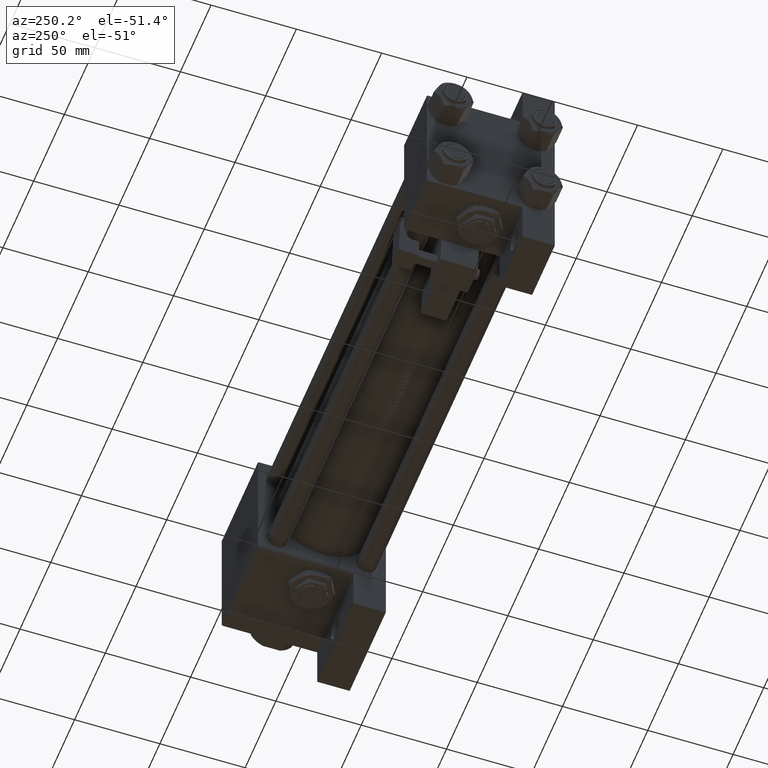
[diagram: clean part render]
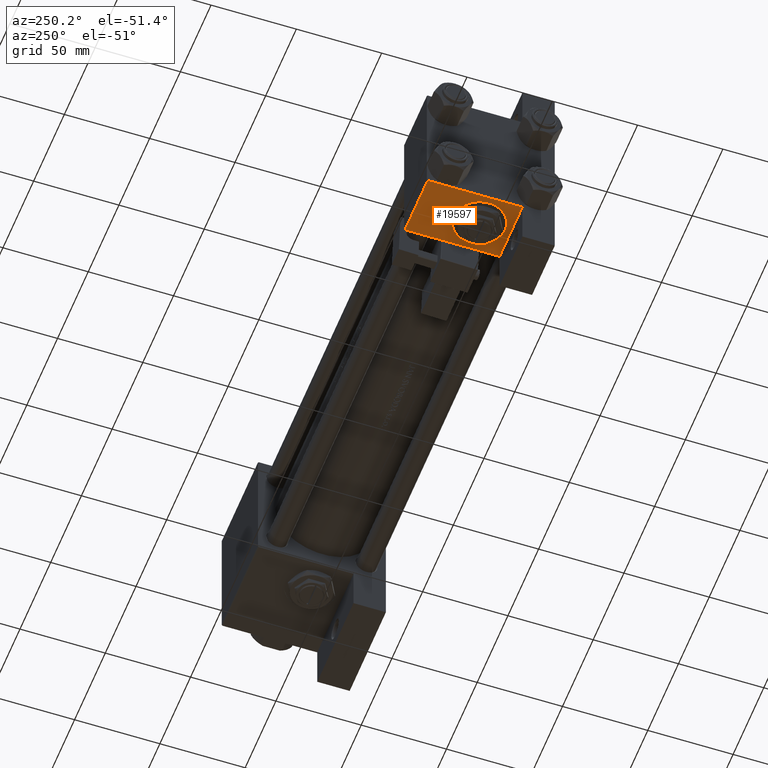
[diagram: same view with one face highlighted and labeled with its STEP entity id]
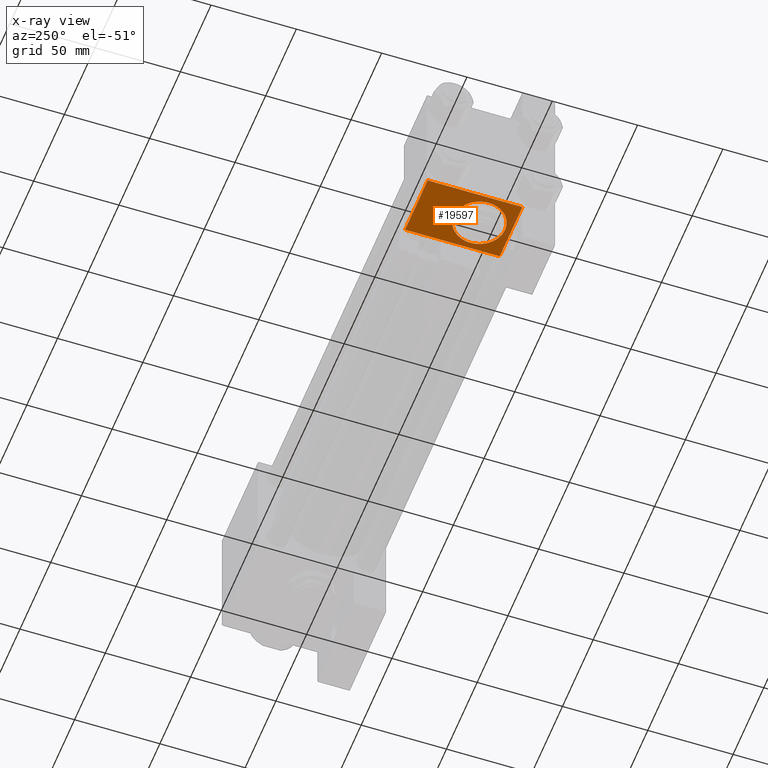
[diagram: x-ray of the same camera — body ghosted, the highlighted face saturated]
A machine part, auxiliary view. The second image highlights one B-rep face of the part: STEP entity #19597.
The next image is the same camera in x-ray: the body ghosted, the highlighted face saturated — about 0% of this face is hidden behind the body in this view.
In plain terms, the highlighted planar face has unit normal (0, 0, -1).
Its self-contained STEP definition (entity closure, byte-faithful):
#2586 = ORIENTED_EDGE ( 'NONE', *, *, #9215, .T. ) ;
#2801 = CARTESIAN_POINT ( 'NONE',  ( 37.00000000000000000, 37.49999999999999289, 37.50000000000000000 ) ) ;
#4147 = CARTESIAN_POINT ( 'NONE',  ( 37.00000000000000711, 37.50000000000000711, -18.50000000000000355 ) ) ;
#4741 = ORIENTED_EDGE ( 'NONE', *, *, #39471, .F. ) ;
#5052 = DIRECTION ( 'NONE',  ( 0.000000000000000000, 0.000000000000000000, -1.000000000000000000 ) ) ;
#6534 = DIRECTION ( 'NONE',  ( 1.000000000000000000, 0.000000000000000000, 0.000000000000000000 ) ) ;
#6915 = VERTEX_POINT ( 'NONE', #17464 ) ;
#7925 = DIRECTION ( 'NONE',  ( 1.000000000000000000, -3.750753461571474945E-16, 0.000000000000000000 ) ) ;
#9215 = EDGE_CURVE ( 'NONE', #10940, #10526, #38963, .T. ) ;
#9673 = EDGE_CURVE ( 'NONE', #10940, #50650, #24899, .T. ) ;
#10421 = CARTESIAN_POINT ( 'NONE',  ( 18.50000000000000000, 37.49999999999999289, 15.00000000000000178 ) ) ;
#10526 = VERTEX_POINT ( 'NONE', #43885 ) ;
#10538 = AXIS2_PLACEMENT_3D ( 'NONE', #38357, #26548, #46997 ) ;
#10853 = AXIS2_PLACEMENT_3D ( 'NONE', #36874, #42130, #30822 ) ;
#10864 = FACE_OUTER_BOUND ( 'NONE', #20560, .T. ) ;
#10940 = VERTEX_POINT ( 'NONE', #36894 ) ;
#11569 = CARTESIAN_POINT ( 'NONE',  ( 8.470280871287256020E-15, 37.50000000000002842, -18.49999999999999645 ) ) ;
#11614 = EDGE_CURVE ( 'NONE', #10526, #39960, #41804, .T. ) ;
#12752 = CARTESIAN_POINT ( 'NONE',  ( 0.000000000000000000, 37.49999999999999289, -18.49999999999999645 ) ) ;
#12805 = DIRECTION ( 'NONE',  ( 0.000000000000000000, 0.000000000000000000, 1.000000000000000000 ) ) ;
#17464 = CARTESIAN_POINT ( 'NONE',  ( 18.50000000000000355, 37.49999999999999289, -15.00000000000000178 ) ) ;
#19597 = ADVANCED_FACE ( 'NONE', ( #10864, #30477 ), #42547, .T. ) ;
#19774 = AXIS2_PLACEMENT_3D ( 'NONE', #36090, #28488, #12805 ) ;
#20560 = EDGE_LOOP ( 'NONE', ( #41157, #37930, #2586, #31687 ) ) ;
#20942 = EDGE_CURVE ( 'NONE', #50650, #39960, #27276, .T. ) ;
#21946 = VECTOR ( 'NONE', #6534, 1000.000000000000000 ) ;
#22897 = VERTEX_POINT ( 'NONE', #10421 ) ;
#24899 = LINE ( 'NONE', #40372, #39517 ) ;
#26548 = DIRECTION ( 'NONE',  ( -0.000000000000000000, 1.000000000000000000, 0.000000000000000000 ) ) ;
#26704 = CIRCLE ( 'NONE', #10853, 15.00000000000000178 ) ;
#27276 = LINE ( 'NONE', #11569, #49527 ) ;
#28488 = DIRECTION ( 'NONE',  ( 0.000000000000000000, 1.000000000000000000, 0.000000000000000000 ) ) ;
#30244 = DIRECTION ( 'NONE',  ( 0.000000000000000000, 0.000000000000000000, -1.000000000000000000 ) ) ;
#30477 = FACE_BOUND ( 'NONE', #37023, .T. ) ;
#30822 = DIRECTION ( 'NONE',  ( 0.000000000000000000, 0.000000000000000000, 1.000000000000000000 ) ) ;
#31687 = ORIENTED_EDGE ( 'NONE', *, *, #11614, .T. ) ;
#36090 = CARTESIAN_POINT ( 'NONE',  ( 18.50000000000000000, 37.49999999999999289, 0.000000000000000000 ) ) ;
#36874 = CARTESIAN_POINT ( 'NONE',  ( 18.50000000000000000, 37.49999999999999289, 0.000000000000000000 ) ) ;
#36894 = CARTESIAN_POINT ( 'NONE',  ( 0.000000000000000000, 37.49999999999999289, 37.00000000000000000 ) ) ;
#37023 = EDGE_LOOP ( 'NONE', ( #41019, #4741 ) ) ;
#37930 = ORIENTED_EDGE ( 'NONE', *, *, #9673, .F. ) ;
#38191 = CARTESIAN_POINT ( 'NONE',  ( 37.00000000000000000, 37.49999999999999289, 37.00000000000000000 ) ) ;
#38357 = CARTESIAN_POINT ( 'NONE',  ( 37.00000000000000000, 37.49999999999999289, 37.50000000000000000 ) ) ;
#38963 = LINE ( 'NONE', #38191, #21946 ) ;
#39471 = EDGE_CURVE ( 'NONE', #6915, #22897, #42375, .T. ) ;
#39517 = VECTOR ( 'NONE', #5052, 1000.000000000000000 ) ;
#39960 = VERTEX_POINT ( 'NONE', #4147 ) ;
#40372 = CARTESIAN_POINT ( 'NONE',  ( 0.000000000000000000, 37.49999999999999289, 37.50000000000000000 ) ) ;
#41019 = ORIENTED_EDGE ( 'NONE', *, *, #49491, .F. ) ;
#41157 = ORIENTED_EDGE ( 'NONE', *, *, #20942, .F. ) ;
#41804 = LINE ( 'NONE', #2801, #49681 ) ;
#42130 = DIRECTION ( 'NONE',  ( 0.000000000000000000, 1.000000000000000000, 0.000000000000000000 ) ) ;
#42375 = CIRCLE ( 'NONE', #19774, 15.00000000000000178 ) ;
#42547 = PLANE ( 'NONE',  #10538 ) ;
#43885 = CARTESIAN_POINT ( 'NONE',  ( 37.00000000000000000, 37.49999999999999289, 37.00000000000000000 ) ) ;
#46997 = DIRECTION ( 'NONE',  ( 0.000000000000000000, -0.000000000000000000, 1.000000000000000000 ) ) ;
#49491 = EDGE_CURVE ( 'NONE', #22897, #6915, #26704, .T. ) ;
#49527 = VECTOR ( 'NONE', #7925, 1000.000000000000000 ) ;
#49681 = VECTOR ( 'NONE', #30244, 1000.000000000000000 ) ;
#50650 = VERTEX_POINT ( 'NONE', #12752 ) ;